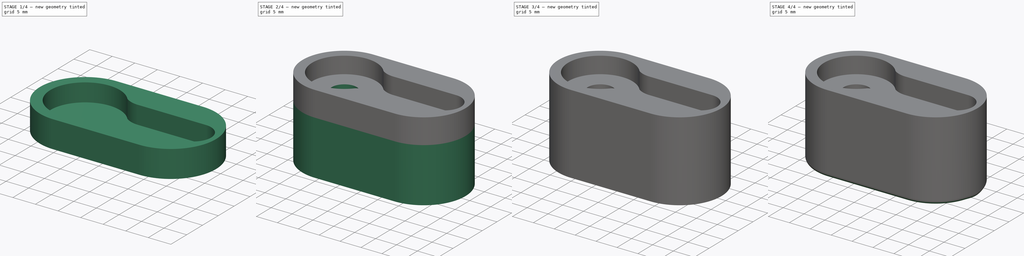
[diagram: build sequence overview — one tinted view per stage of 4, left to right]
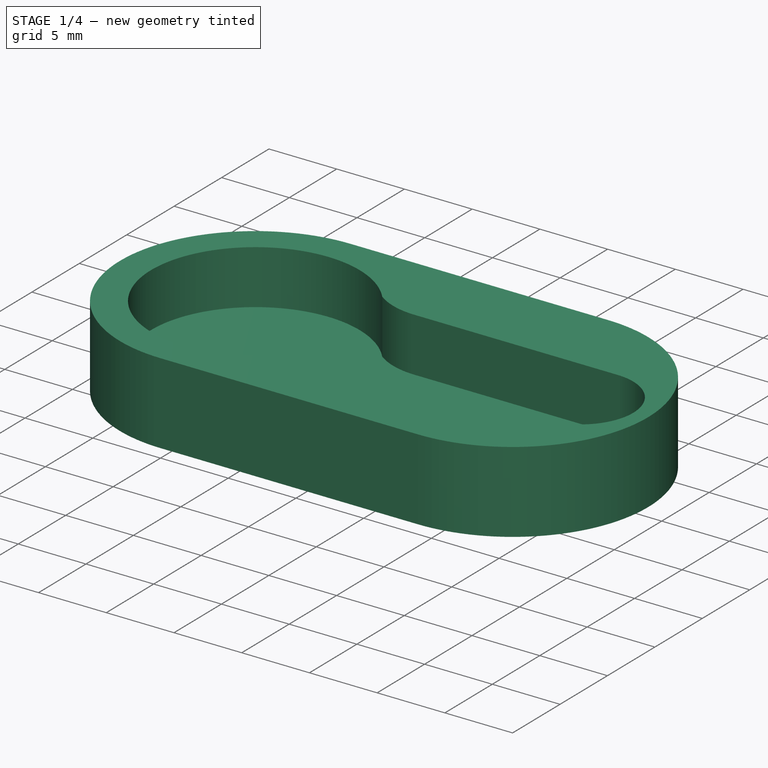
[diagram: stage 1 of 4 — iso view after this stage's code; geometry added in this stage tinted green]
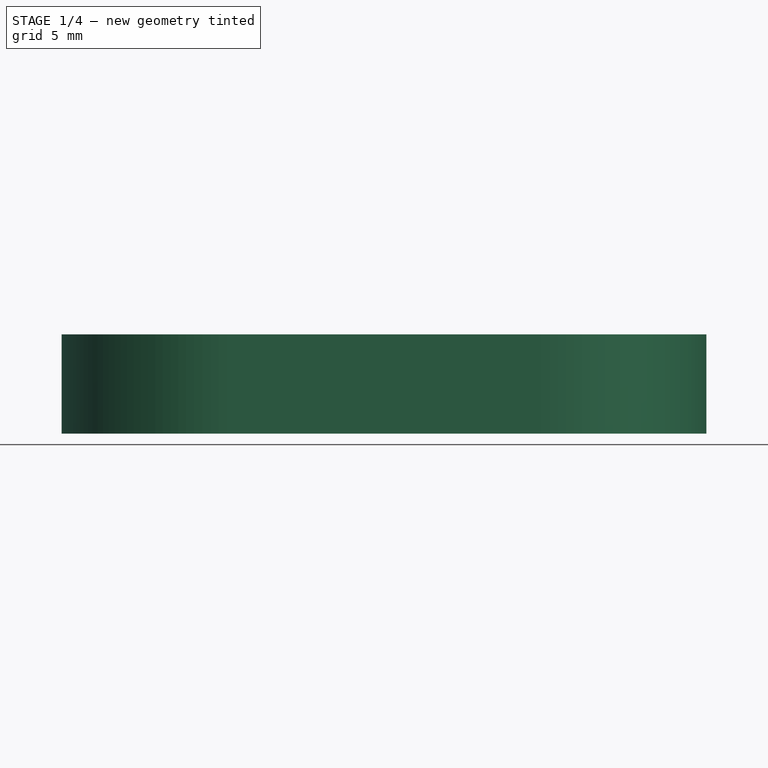
[diagram: stage 1 of 4 — front view after this stage's code; geometry added in this stage tinted green]
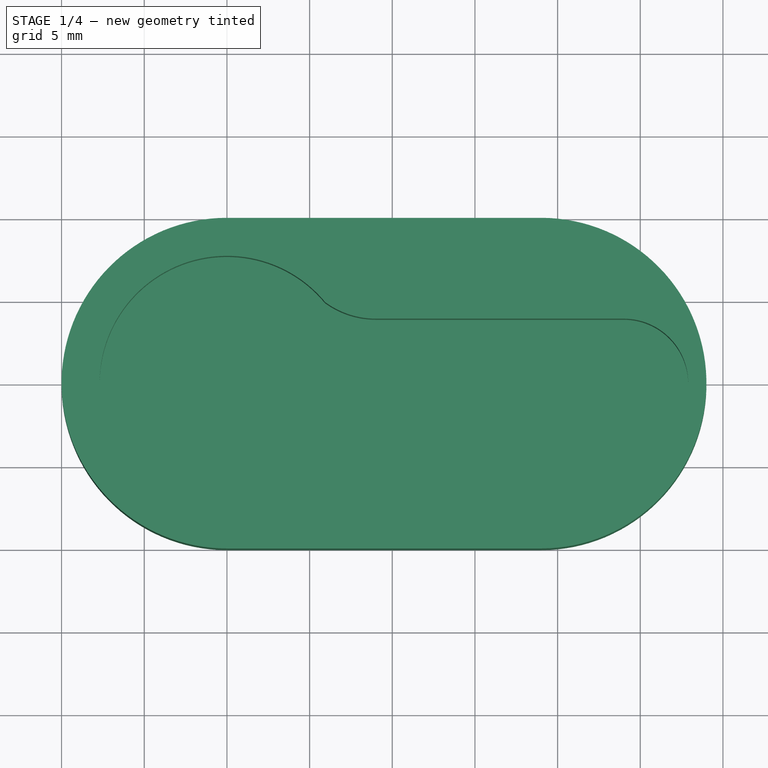
[diagram: stage 1 of 4 — top view after this stage's code; geometry added in this stage tinted green]
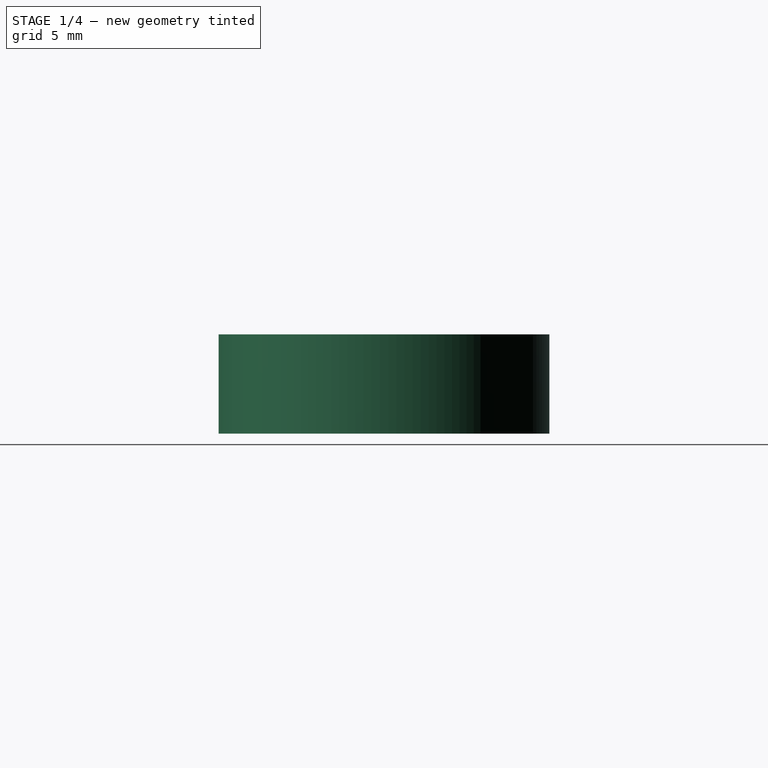
[diagram: stage 1 of 4 — right view after this stage's code; geometry added in this stage tinted green]
FCSTD DOCUMENT  (FreeCAD 0.19R24276 (Git))
Label: Rocker_support
License: All rights reserved
LicenseURL: http://en.wikipedia.org/wiki/All_rights_reserved
objects: Sketcher::SketchObject×4, PartDesign::Chamfer×4, PartDesign::Pad×3, PartDesign::Pocket×1, PartDesign::Fillet×1, PartDesign::Body×1
note: 23 computed .brp shape members not serialized (recipe doc carries the construction recipe); baked Part::Feature solids carry a one-line shape summary decoded from their .brp

FEATURE [Sketcher::SketchObject] Sketch
  FullyConstrained = false
  MapMode = 5
  Support = -> [XY_Plane]
  sketch-geometry (23):
    g0: LineSegment StartX=9 StartY=3.9 StartZ=0 EndX=9 EndY=-3.9 EndZ=0
    g1: LineSegment StartX=0 StartY=0 StartZ=0 EndX=10.25 EndY=0 EndZ=0
    g2: LineSegment StartX=9 StartY=3.9 StartZ=0 EndX=24 EndY=3.9 EndZ=0
    g3: LineSegment StartX=9 StartY=-3.9 StartZ=0 EndX=24 EndY=-3.9 EndZ=0
    g4: LineSegment StartX=24 StartY=0 StartZ=0 EndX=24 EndY=-3.75 EndZ=0
    g5: LineSegment StartX=24 StartY=0 StartZ=0 EndX=24 EndY=3.9 EndZ=0
    g6: ArcOfCircle CenterX=24 CenterY=0 CenterZ=0 NormalX=0 NormalY=0 NormalZ=1 AngleXU=0 Radius=3.9 StartAngle=4.71239 EndAngle=7.85398
    g7: LineSegment StartX=9 StartY=3.9 StartZ=0 EndX=9 EndY=9.08 EndZ=0
    g8: LineSegment StartX=9 StartY=-3.9 StartZ=0 EndX=9 EndY=-9.08 EndZ=0
    g9: ArcOfCircle CenterX=9 CenterY=-9.08 CenterZ=0 NormalX=0 NormalY=0 NormalZ=1 AngleXU=0 Radius=5.18 StartAngle=1.5708 EndAngle=2.20316
    g10: LineSegment StartX=9 StartY=-9.08 StartZ=0 EndX=5.93834 EndY=-4.90165 EndZ=0
    g11: ArcOfCircle CenterX=0 CenterY=0 CenterZ=0 NormalX=0 NormalY=0 NormalZ=1 AngleXU=0 Radius=7.7 StartAngle=0.690053 EndAngle=5.59313
    g12: LineSegment StartX=9 StartY=9.08 StartZ=0 EndX=5.93834 EndY=4.90165 EndZ=0
    g13: ArcOfCircle CenterX=9 CenterY=9.08 CenterZ=0 NormalX=0 NormalY=0 NormalZ=1 AngleXU=0 Radius=5.18 StartAngle=4.08002 EndAngle=4.71239
    g14: LineSegment StartX=24 StartY=3.9 StartZ=0 EndX=24 EndY=-3.9 EndZ=0
    g15: Circle CenterX=0 CenterY=0 CenterZ=0 NormalX=0 NormalY=0 NormalZ=1 AngleXU=0 Radius=3
    g16: Circle CenterX=24 CenterY=0 CenterZ=0 NormalX=0 NormalY=0 NormalZ=1 AngleXU=0 Radius=1.25
    g17: Circle CenterX=20 CenterY=0 CenterZ=0 NormalX=0 NormalY=0 NormalZ=1 AngleXU=0 Radius=1.25
    g18: LineSegment StartX=0 StartY=0 StartZ=0 EndX=0 EndY=0 EndZ=0
    g19: ArcOfCircle CenterX=0 CenterY=0 CenterZ=0 NormalX=0 NormalY=0 NormalZ=1 AngleXU=0 Radius=10 StartAngle=1.5708 EndAngle=4.71239
    g20: ArcOfCircle CenterX=19 CenterY=-9e-16 CenterZ=0 NormalX=0 NormalY=0 NormalZ=1 AngleXU=0 Radius=10 StartAngle=4.71239 EndAngle=7.85398
    g21: LineSegment StartX=-1.8e-15 StartY=-10 StartZ=0 EndX=19 EndY=-10 EndZ=0
    g22: LineSegment StartX=-1.6e-15 StartY=10 StartZ=0 EndX=19 EndY=10 EndZ=0
  constraints (62):
    c: Vertical(g0)
    c: PointOnObject(g1,g-1)
    c: Vertical(g4)
    c: PointOnObject(g5,g2)
    c: Vertical(g5)
    c: Coincident(g6,g4)
    c: Coincident(g6,g3)
    c: Coincident(g6,g2)
    c: Coincident(g7,g0)
    c: Vertical(g7)
    c: DistanceY(g7,g7) = 5.18
    c: Coincident(g8,g0)
    c: DistanceY(g8,g8) = 5.18
    c: Coincident(g9,g8)
    c: Coincident(g10,g8)
    c: PointOnObject(g10,g9)
    c: Coincident(g11,g-1)
    c: PointOnObject(g10,g11)
    c: Coincident(g0,g2)
    c: Coincident(g12,g7)
    c: PointOnObject(g12,g11)
    c: Coincident(g13,g7)
    c: PointOnObject(g12,g13)
    c: Coincident(g13,g7)
    c: Coincident(g9,g0)
    c: Coincident(g11,g9)
    c: Coincident(g11,g13)
    c: Coincident(g3,g9)
    c: DistanceX(g11,g9) = 9
    c: Vertical(g9,g13)
    c: Horizontal(g2)
    c: Horizontal(g3)
    c: DistanceY(g0,g0) = 7.8
    c: Coincident(g12,g11)
    c: Coincident(g10,g9)
    c: Coincident(g14,g2)
    c: Coincident(g14,g3)
    c: Vertical(g14)
    c: Coincident(g15,g11)
    c: Diameter(g15) = 6
    c: Coincident(g16,g6)
    c: Diameter(g16) = 2.5
    c: PointOnObject(g17,g-1)
    c: Equal(g17,g16)
    c: DistanceX(g17,g6) = 4
    c: Coincident(g6,g5)
    c: Vertical(g6,g3)
    c: Coincident(g18,g11)
    c: PointOnObject(g18,g-1)
    c: DistanceX(g18,g18) = 0
    c: Tangent(g19,g22) = 1.5708
    c: Tangent(g19,g21) = -1.5708
    c: Tangent(g21,g20) = -1.5708
    c: Tangent(g22,g20) = 1.5708
    c: Horizontal(g21)
    c: Equal(g19,g20)
    c: Coincident(g19,g11)
    c: Diameter(g20) = 20
    c: DistanceX(g11,g20) = 19
    c: Diameter(g11) = 15.4
    c: Horizontal(g6,g17)
    c: DistanceX(g11,g6) = 24
FEATURE [PartDesign::Pad] Pad
  Direction = (1,1,1)
  Length = 4
  Length2 = 100
  Profile = -> Sketch
  Type = 0
FEATURE [Sketcher::SketchObject] Sketch001
  FullyConstrained = false
  MapMode = 5
  sketch-geometry (23):
    g0: LineSegment StartX=9 StartY=3.9 StartZ=0 EndX=9 EndY=-3.9 EndZ=0
    g1: LineSegment StartX=0 StartY=0 StartZ=0 EndX=10.25 EndY=0 EndZ=0
    g2: LineSegment StartX=9 StartY=3.9 StartZ=0 EndX=24 EndY=3.9 EndZ=0
    g3: LineSegment StartX=9 StartY=-3.9 StartZ=0 EndX=24 EndY=-3.9 EndZ=0
    g4: LineSegment StartX=24 StartY=0 StartZ=0 EndX=24 EndY=-3.75 EndZ=0
    g5: LineSegment StartX=24 StartY=0 StartZ=0 EndX=24 EndY=3.9 EndZ=0
    g6: ArcOfCircle CenterX=24 CenterY=0 CenterZ=0 NormalX=0 NormalY=0 NormalZ=1 AngleXU=0 Radius=3.9 StartAngle=4.71239 EndAngle=7.85398
    g7: LineSegment StartX=9 StartY=3.9 StartZ=0 EndX=9 EndY=9.08 EndZ=0
    g8: LineSegment StartX=9 StartY=-3.9 StartZ=0 EndX=9 EndY=-9.08 EndZ=0
    g9: ArcOfCircle CenterX=9 CenterY=-9.08 CenterZ=0 NormalX=0 NormalY=0 NormalZ=1 AngleXU=0 Radius=5.18 StartAngle=1.5708 EndAngle=2.20316
    g10: LineSegment StartX=9 StartY=-9.08 StartZ=0 EndX=5.93834 EndY=-4.90165 EndZ=0
    g11: ArcOfCircle CenterX=0 CenterY=0 CenterZ=0 NormalX=0 NormalY=0 NormalZ=1 AngleXU=0 Radius=7.7 StartAngle=0.690053 EndAngle=5.59313
    g12: LineSegment StartX=9 StartY=9.08 StartZ=0 EndX=5.93834 EndY=4.90165 EndZ=0
    g13: ArcOfCircle CenterX=9 CenterY=9.08 CenterZ=0 NormalX=0 NormalY=0 NormalZ=1 AngleXU=0 Radius=5.18 StartAngle=4.08002 EndAngle=4.71239
    g14: LineSegment StartX=24 StartY=3.9 StartZ=0 EndX=24 EndY=-3.9 EndZ=0
    g15: Circle CenterX=0 CenterY=0 CenterZ=0 NormalX=0 NormalY=0 NormalZ=1 AngleXU=0 Radius=3
    g16: Circle CenterX=24 CenterY=0 CenterZ=0 NormalX=0 NormalY=0 NormalZ=1 AngleXU=0 Radius=1.25
    g17: Circle CenterX=20 CenterY=0 CenterZ=0 NormalX=0 NormalY=0 NormalZ=1 AngleXU=0 Radius=1.25
    g18: LineSegment StartX=0 StartY=0 StartZ=0 EndX=0 EndY=0 EndZ=0
    g19: ArcOfCircle CenterX=0 CenterY=0 CenterZ=0 NormalX=0 NormalY=0 NormalZ=1 AngleXU=0 Radius=10 StartAngle=1.5708 EndAngle=4.71239
    g20: ArcOfCircle CenterX=19 CenterY=-1e-16 CenterZ=0 NormalX=0 NormalY=0 NormalZ=1 AngleXU=0 Radius=10 StartAngle=4.71239 EndAngle=7.85398
    g21: LineSegment StartX=-1.8e-15 StartY=-10 StartZ=0 EndX=19 EndY=-10 EndZ=0
    g22: LineSegment StartX=-1.6e-15 StartY=10 StartZ=0 EndX=19 EndY=10 EndZ=0
  constraints (62):
    c: Vertical(g0)
    c: PointOnObject(g1,g-1)
    c: Vertical(g4)
    c: PointOnObject(g5,g2)
    c: Vertical(g5)
    c: Coincident(g6,g4)
    c: Coincident(g6,g3)
    c: Coincident(g6,g2)
    c: Coincident(g7,g0)
    c: Vertical(g7)
    c: DistanceY(g7,g7) = 5.18
    c: Coincident(g8,g0)
    c: DistanceY(g8,g8) = 5.18
    c: Coincident(g9,g8)
    c: Coincident(g10,g8)
    c: PointOnObject(g10,g9)
    c: Coincident(g11,g-1)
    c: PointOnObject(g10,g11)
    c: Coincident(g0,g2)
    c: Coincident(g12,g7)
    c: PointOnObject(g12,g11)
    c: Coincident(g13,g7)
    c: PointOnObject(g12,g13)
    c: Coincident(g13,g7)
    c: Coincident(g9,g0)
    c: Coincident(g11,g9)
    c: Coincident(g11,g13)
    c: Coincident(g3,g9)
    c: DistanceX(g11,g9) = 9
    c: Vertical(g9,g13)
    c: Horizontal(g2)
    c: Horizontal(g3)
    c: DistanceY(g0,g0) = 7.8
    c: Coincident(g12,g11)
    c: Coincident(g10,g9)
    c: Coincident(g14,g2)
    c: Coincident(g14,g3)
    c: Vertical(g14)
    c: Coincident(g15,g11)
    c: Diameter(g15) = 6
    c: Coincident(g16,g6)
    c: Diameter(g16) = 2.5
    c: PointOnObject(g17,g-1)
    c: Equal(g17,g16)
    c: DistanceX(g17,g6) = 4
    c: Coincident(g6,g5)
    c: Vertical(g6,g3)
    c: Coincident(g18,g11)
    c: PointOnObject(g18,g-1)
    c: DistanceX(g18,g18) = 0
    c: Tangent(g19,g22) = 1.5708
    c: Tangent(g19,g21) = -1.5708
    c: Tangent(g21,g20) = -1.5708
    c: Tangent(g22,g20) = 1.5708
    c: Horizontal(g21)
    c: Equal(g19,g20)
    c: Coincident(g19,g11)
    c: Diameter(g20) = 20
    c: DistanceX(g11,g20) = 19
    c: Diameter(g11) = 15.4
    c: Horizontal(g4,g17)
    c: DistanceX(g19,g4) = 24
FEATURE [PartDesign::Pad] Pad001
  BaseFeature = -> Pad
  Direction = (1,1,1)
  Length = 2
  Length2 = 100
  Profile = -> Sketch001
  Reversed = true
  Type = 0
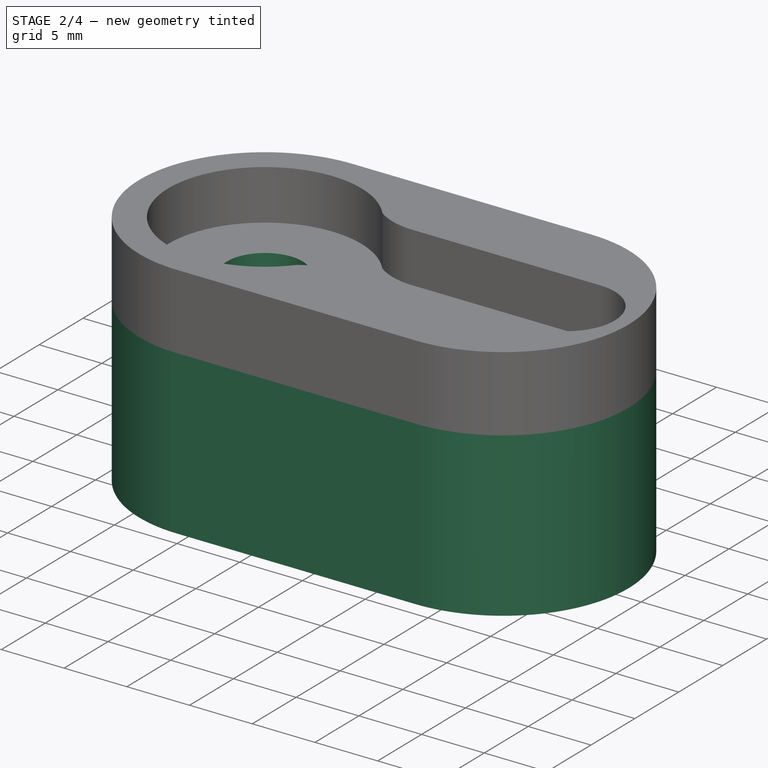
[diagram: stage 2 of 4 — iso view after this stage's code; geometry added in this stage tinted green]
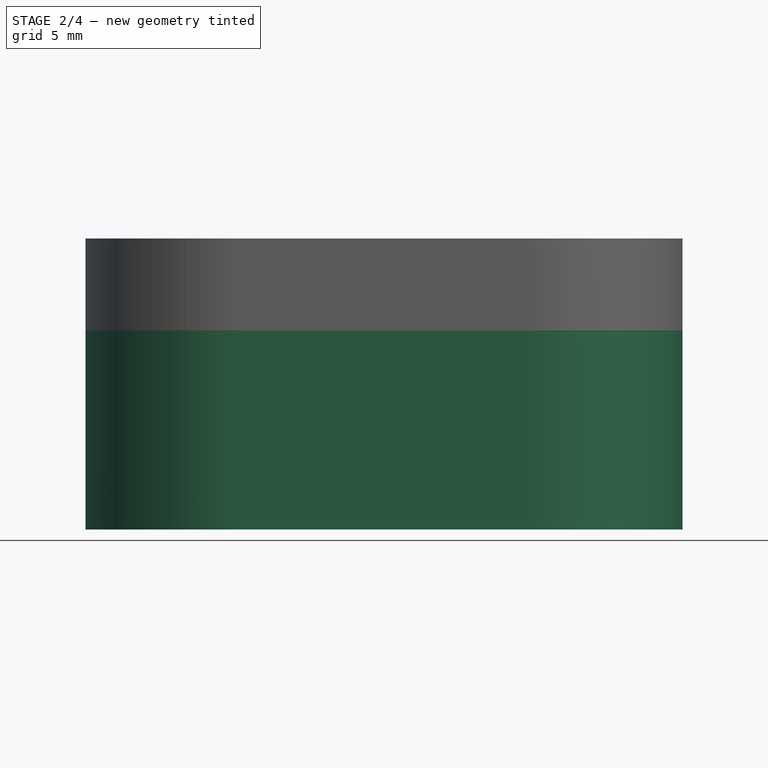
[diagram: stage 2 of 4 — front view after this stage's code; geometry added in this stage tinted green]
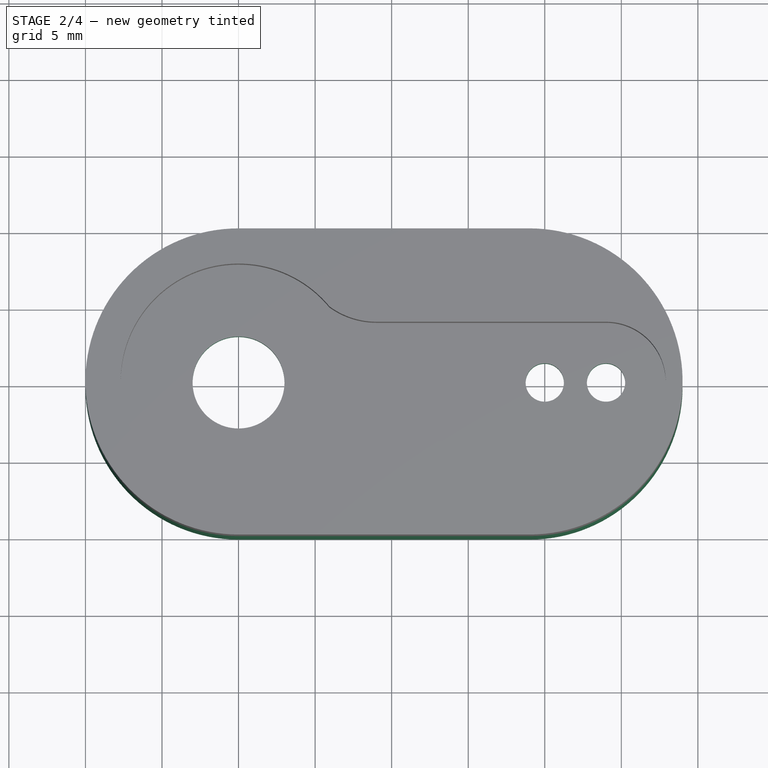
[diagram: stage 2 of 4 — top view after this stage's code; geometry added in this stage tinted green]
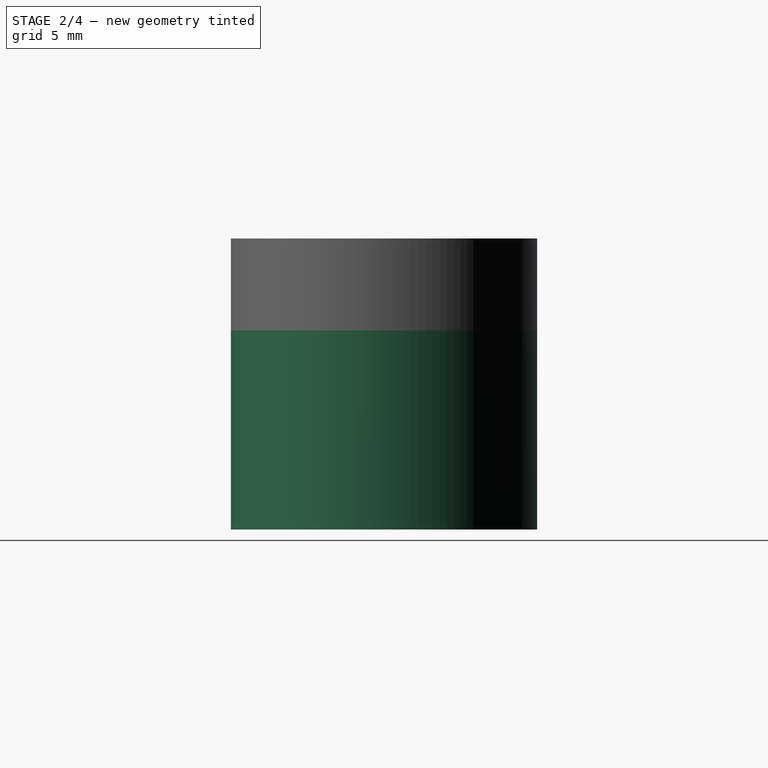
[diagram: stage 2 of 4 — right view after this stage's code; geometry added in this stage tinted green]
FEATURE [Sketcher::SketchObject] Sketch002
  FullyConstrained = false
  MapMode = 5
  sketch-geometry (23):
    g0: LineSegment StartX=9 StartY=3.9 StartZ=0 EndX=9 EndY=-3.9 EndZ=0
    g1: LineSegment StartX=0 StartY=0 StartZ=0 EndX=10.25 EndY=0 EndZ=0
    g2: LineSegment StartX=9 StartY=3.9 StartZ=0 EndX=24 EndY=3.9 EndZ=0
    g3: LineSegment StartX=9 StartY=-3.9 StartZ=0 EndX=24 EndY=-3.9 EndZ=0
    g4: LineSegment StartX=24 StartY=0 StartZ=0 EndX=24 EndY=-3.75 EndZ=0
    g5: LineSegment StartX=24 StartY=0 StartZ=0 EndX=24 EndY=3.9 EndZ=0
    g6: ArcOfCircle CenterX=24 CenterY=0 CenterZ=0 NormalX=0 NormalY=0 NormalZ=1 AngleXU=0 Radius=3.9 StartAngle=4.71239 EndAngle=7.85398
    g7: LineSegment StartX=9 StartY=3.9 StartZ=0 EndX=9 EndY=9.08 EndZ=0
    g8: LineSegment StartX=9 StartY=-3.9 StartZ=0 EndX=9 EndY=-9.08 EndZ=0
    g9: ArcOfCircle CenterX=9 CenterY=-9.08 CenterZ=0 NormalX=0 NormalY=0 NormalZ=1 AngleXU=0 Radius=5.18 StartAngle=1.5708 EndAngle=2.20316
    g10: LineSegment StartX=9 StartY=-9.08 StartZ=0 EndX=5.93834 EndY=-4.90165 EndZ=0
    g11: ArcOfCircle CenterX=0 CenterY=0 CenterZ=0 NormalX=0 NormalY=0 NormalZ=1 AngleXU=0 Radius=7.7 StartAngle=0.690053 EndAngle=5.59313
    g12: LineSegment StartX=9 StartY=9.08 StartZ=0 EndX=5.93834 EndY=4.90165 EndZ=0
    g13: ArcOfCircle CenterX=9 CenterY=9.08 CenterZ=0 NormalX=0 NormalY=0 NormalZ=1 AngleXU=0 Radius=5.18 StartAngle=4.08002 EndAngle=4.71239
    g14: LineSegment StartX=24 StartY=3.9 StartZ=0 EndX=24 EndY=-3.9 EndZ=0
    g15: Circle CenterX=0 CenterY=0 CenterZ=0 NormalX=0 NormalY=0 NormalZ=1 AngleXU=0 Radius=3
    g16: Circle CenterX=24 CenterY=0 CenterZ=0 NormalX=0 NormalY=0 NormalZ=1 AngleXU=0 Radius=1.25
    g17: Circle CenterX=20 CenterY=0 CenterZ=0 NormalX=0 NormalY=0 NormalZ=1 AngleXU=0 Radius=1.25
    g18: LineSegment StartX=0 StartY=0 StartZ=0 EndX=0 EndY=0 EndZ=0
    g19: ArcOfCircle CenterX=0 CenterY=0 CenterZ=0 NormalX=0 NormalY=0 NormalZ=1 AngleXU=0 Radius=10 StartAngle=1.5708 EndAngle=4.71239
    g20: ArcOfCircle CenterX=19 CenterY=1e-16 CenterZ=0 NormalX=0 NormalY=0 NormalZ=1 AngleXU=0 Radius=10 StartAngle=4.71239 EndAngle=7.85398
    g21: LineSegment StartX=0 StartY=-10 StartZ=0 EndX=19 EndY=-10 EndZ=0
    g22: LineSegment StartX=-1.6e-15 StartY=10 StartZ=0 EndX=19 EndY=10 EndZ=0
  constraints (62):
    c: Vertical(g0)
    c: PointOnObject(g1,g-1)
    c: Vertical(g4)
    c: PointOnObject(g5,g2)
    c: Vertical(g5)
    c: Coincident(g6,g4)
    c: Coincident(g6,g3)
    c: Coincident(g6,g2)
    c: Coincident(g7,g0)
    c: Vertical(g7)
    c: DistanceY(g7,g7) = 5.18
    c: Coincident(g8,g0)
    c: DistanceY(g8,g8) = 5.18
    c: Coincident(g9,g8)
    c: Coincident(g10,g8)
    c: PointOnObject(g10,g9)
    c: Coincident(g11,g-1)
    c: PointOnObject(g10,g11)
    c: Coincident(g0,g2)
    c: Coincident(g12,g7)
    c: PointOnObject(g12,g11)
    c: Coincident(g13,g7)
    c: PointOnObject(g12,g13)
    c: Coincident(g13,g7)
    c: Coincident(g9,g0)
    c: Coincident(g11,g9)
    c: Coincident(g11,g13)
    c: Coincident(g3,g9)
    c: DistanceX(g11,g9) = 9
    c: Vertical(g9,g13)
    c: Horizontal(g2)
    c: Horizontal(g3)
    c: DistanceY(g0,g0) = 7.8
    c: Coincident(g12,g11)
    c: Coincident(g10,g9)
    c: Coincident(g14,g2)
    c: Coincident(g14,g3)
    c: Vertical(g14)
    c: Coincident(g15,g11)
    c: Diameter(g15) = 6
    c: Coincident(g16,g6)
    c: Diameter(g16) = 2.5
    c: PointOnObject(g17,g-1)
    c: Equal(g17,g16)
    c: DistanceX(g17,g6) = 4
    c: Coincident(g6,g5)
    c: Vertical(g6,g3)
    c: Coincident(g18,g11)
    c: PointOnObject(g18,g-1)
    c: DistanceX(g18,g18) = 0
    c: Tangent(g19,g22) = 1.5708
    c: Tangent(g19,g21) = -1.5708
    c: Tangent(g21,g20) = -1.5708
    c: Tangent(g22,g20) = 1.5708
    c: Horizontal(g21)
    c: Equal(g19,g20)
    c: Coincident(g19,g11)
    c: Diameter(g20) = 20
    c: DistanceX(g11,g20) = 19
    c: Diameter(g11) = 15.4
    c: Horizontal(g16,g17)
    c: DistanceX(g15,g16) = 24
FEATURE [PartDesign::Pocket] Pocket
  BaseFeature = -> Pad001
  Length = 5
  Length2 = 100
  Profile = -> Sketch002
  Type = 1
FEATURE [Sketcher::SketchObject] Sketch003
  FullyConstrained = false
  MapMode = 5
  Placement = pos=(0,0,-2) rot=(0,0,1;0rad)
  sketch-geometry (35):
    g0: LineSegment StartX=9 StartY=3.9 StartZ=0 EndX=9 EndY=-3.9 EndZ=0
    g1: LineSegment StartX=0 StartY=0 StartZ=0 EndX=10.25 EndY=0 EndZ=0
    g2: LineSegment StartX=9 StartY=3.9 StartZ=0 EndX=24 EndY=3.9 EndZ=0
    g3: LineSegment StartX=9 StartY=-3.9 StartZ=0 EndX=24 EndY=-3.9 EndZ=0
    g4: LineSegment StartX=24 StartY=0 StartZ=0 EndX=24 EndY=-3.75 EndZ=0
    g5: LineSegment StartX=24 StartY=0 StartZ=0 EndX=24 EndY=3.9 EndZ=0
    g6: ArcOfCircle CenterX=24 CenterY=0 CenterZ=0 NormalX=0 NormalY=0 NormalZ=1 AngleXU=0 Radius=3.9 StartAngle=4.71239 EndAngle=7.85398
    g7: LineSegment StartX=9 StartY=3.9 StartZ=0 EndX=9 EndY=9.08 EndZ=0
    g8: LineSegment StartX=9 StartY=-3.9 StartZ=0 EndX=9 EndY=-9.08 EndZ=0
    g9: ArcOfCircle CenterX=9 CenterY=-9.08 CenterZ=0 NormalX=0 NormalY=0 NormalZ=1 AngleXU=0 Radius=5.18 StartAngle=1.5708 EndAngle=2.20316
    g10: LineSegment StartX=9 StartY=-9.08 StartZ=0 EndX=5.93834 EndY=-4.90165 EndZ=0
    g11: ArcOfCircle CenterX=0 CenterY=0 CenterZ=0 NormalX=0 NormalY=0 NormalZ=1 AngleXU=0 Radius=7.7 StartAngle=0.690053 EndAngle=5.59313
    g12: LineSegment StartX=9 StartY=9.08 StartZ=0 EndX=5.93834 EndY=4.90165 EndZ=0
    g13: ArcOfCircle CenterX=9 CenterY=9.08 CenterZ=0 NormalX=0 NormalY=0 NormalZ=1 AngleXU=0 Radius=5.18 StartAngle=4.08002 EndAngle=4.71239
    g14: LineSegment StartX=24 StartY=3.9 StartZ=0 EndX=24 EndY=-3.9 EndZ=0
    g15: Circle CenterX=0 CenterY=0 CenterZ=0 NormalX=0 NormalY=0 NormalZ=1 AngleXU=0 Radius=3
    g16: Circle CenterX=24 CenterY=0 CenterZ=0 NormalX=0 NormalY=0 NormalZ=1 AngleXU=0 Radius=1.25
    g17: Circle CenterX=20 CenterY=0 CenterZ=0 NormalX=0 NormalY=0 NormalZ=1 AngleXU=0 Radius=1.25
    g18: LineSegment StartX=0 StartY=0 StartZ=0 EndX=0 EndY=0 EndZ=0
    g19: ArcOfCircle CenterX=0 CenterY=0 CenterZ=0 NormalX=0 NormalY=0 NormalZ=1 AngleXU=0 Radius=10 StartAngle=1.5708 EndAngle=4.71239
    g20: ArcOfCircle CenterX=19 CenterY=-6e-16 CenterZ=0 NormalX=0 NormalY=0 NormalZ=1 AngleXU=0 Radius=10 StartAngle=4.71239 EndAngle=7.85398
    g21: LineSegment StartX=-1.8e-15 StartY=-10 StartZ=0 EndX=19 EndY=-10 EndZ=0
    g22: LineSegment StartX=-1.6e-15 StartY=10 StartZ=0 EndX=19 EndY=10 EndZ=0
    g23: LineSegment StartX=23 StartY=1.5 StartZ=0 EndX=23 EndY=-1.5 EndZ=0
    g24: LineSegment StartX=-7 StartY=-1.42701 StartZ=0 EndX=-7 EndY=1.42701 EndZ=0
    g25: LineSegment StartX=0 StartY=0 StartZ=0 EndX=-7 EndY=0 EndZ=0
    g26: ArcOfCircle CenterX=20 CenterY=0 CenterZ=0 NormalX=0 NormalY=0 NormalZ=1 AngleXU=0 Radius=4.00001 StartAngle=3.52487 EndAngle=5.23599
    g27: ArcOfCircle CenterX=20 CenterY=0 CenterZ=0 NormalX=0 NormalY=0 NormalZ=1 AngleXU=0 Radius=4.00001 StartAngle=1.0472 EndAngle=2.75607
    g28: ArcOfCircle CenterX=24 CenterY=1.34123e-08 CenterZ=0 NormalX=0 NormalY=0 NormalZ=1 AngleXU=0 Radius=4 StartAngle=4.18879 EndAngle=8.37758
    g29: LineSegment StartX=3.1603 StartY=1.50417 StartZ=0 EndX=16.2936 EndY=1.50417 EndZ=0
    g30: LineSegment StartX=-3.19588 StartY=-1.42701 StartZ=0 EndX=-7 EndY=-1.42701 EndZ=0
    g31: LineSegment StartX=3.16425 StartY=-1.49583 StartZ=0 EndX=16.2902 EndY=-1.49583 EndZ=0
    g32: LineSegment StartX=-7 StartY=1.42701 StartZ=0 EndX=-3.19588 EndY=1.42701 EndZ=0
    g33: ArcOfCircle CenterX=0 CenterY=0 CenterZ=0 NormalX=0 NormalY=0 NormalZ=1 AngleXU=0 Radius=3.5 StartAngle=0.444229 EndAngle=2.72164
    g34: ArcOfCircle CenterX=0 CenterY=0 CenterZ=0 NormalX=0 NormalY=0 NormalZ=1 AngleXU=0 Radius=3.5 StartAngle=3.56154 EndAngle=5.84159
  constraints (91):
    c: Vertical(g0)
    c: PointOnObject(g1,g-1)
    c: Vertical(g4)
    c: PointOnObject(g5,g2)
    c: Vertical(g5)
    c: Coincident(g6,g4)
    c: Coincident(g6,g3)
    c: Coincident(g6,g2)
    c: Coincident(g7,g0)
    c: Vertical(g7)
    c: DistanceY(g7,g7) = 5.18
    c: Coincident(g8,g0)
    c: DistanceY(g8,g8) = 5.18
    c: Coincident(g9,g8)
    c: Coincident(g10,g8)
    c: PointOnObject(g10,g9)
    c: Coincident(g11,g-1)
    c: PointOnObject(g10,g11)
    c: Coincident(g0,g2)
    c: Coincident(g12,g7)
    c: PointOnObject(g12,g11)
    c: Coincident(g13,g7)
    c: PointOnObject(g12,g13)
    c: Coincident(g13,g7)
    c: Coincident(g9,g0)
    c: Coincident(g11,g9)
    c: Coincident(g11,g13)
    c: Coincident(g3,g9)
    c: DistanceX(g11,g9) = 9
    c: Vertical(g9,g13)
    c: Horizontal(g2)
    c: Horizontal(g3)
    c: DistanceY(g0,g0) = 7.8
    c: Coincident(g12,g11)
    c: Coincident(g10,g9)
    c: Coincident(g14,g2)
    c: Coincident(g14,g3)
    c: Vertical(g14)
    c: Coincident(g15,g11)
    c: Diameter(g15) = 6
    c: Coincident(g16,g6)
    c: Diameter(g16) = 2.5
    c: PointOnObject(g17,g-1)
    c: Equal(g17,g16)
    c: DistanceX(g17,g6) = 4
    c: Coincident(g6,g5)
    c: Vertical(g6,g3)
    c: Coincident(g18,g11)
    c: PointOnObject(g18,g-1)
    c: DistanceX(g18,g18) = 0
    c: Tangent(g19,g22) = 1.5708
    c: Tangent(g19,g21) = -1.5708
    c: Tangent(g21,g20) = -1.5708
    c: Tangent(g22,g20) = 1.5708
    c: Horizontal(g21)
    c: Equal(g19,g20)
    c: Coincident(g19,g11)
    c: Diameter(g20) = 20
    c: DistanceX(g11,g20) = 19
    c: Diameter(g11) = 15.4
    c: Coincident(g30,g24)
    c: Vertical(g23)
    c: Vertical(g24)
    c: Coincident(g25,g15)
    c: PointOnObject(g25,g-1)
    c: Symmetric(g30,g24,g25)
    c: DistanceX(g30,g15) = 7
    c: DistanceX(g15,g23) = 23
    c: Horizontal(g17,g16)
    c: DistanceX(g15,g16) = 24
    c: Coincident(g26,g17)
    c: Coincident(g29,g27)
    c: Equal(g26,g27)
    c: Coincident(g27,g28)
    c: Coincident(g26,g27)
    c: Coincident(g26,g28)
    c: Coincident(g31,g26)
    c: Horizontal(g31)
    c: Coincident(g32,g24)
    c: Horizontal(g32)
    c: DistanceY(g26,g27) = 3
    c: Horizontal(g29)
    c: Horizontal(g30)
    c: Coincident(g33,g19)
    c: Diameter(g33) = 7
    c: Coincident(g34,g31)
    c: Coincident(g33,g29)
    c: Equal(g33,g34)
    c: Coincident(g33,g32)
    c: Coincident(g33,g34)
    c: Coincident(g30,g34)
FEATURE [PartDesign::Pad] Pad002
  BaseFeature = -> Pocket
  Direction = (1,1,1)
  Length = 13
  Length2 = 100
  Profile = -> Sketch003
  Reversed = true
  Type = 0
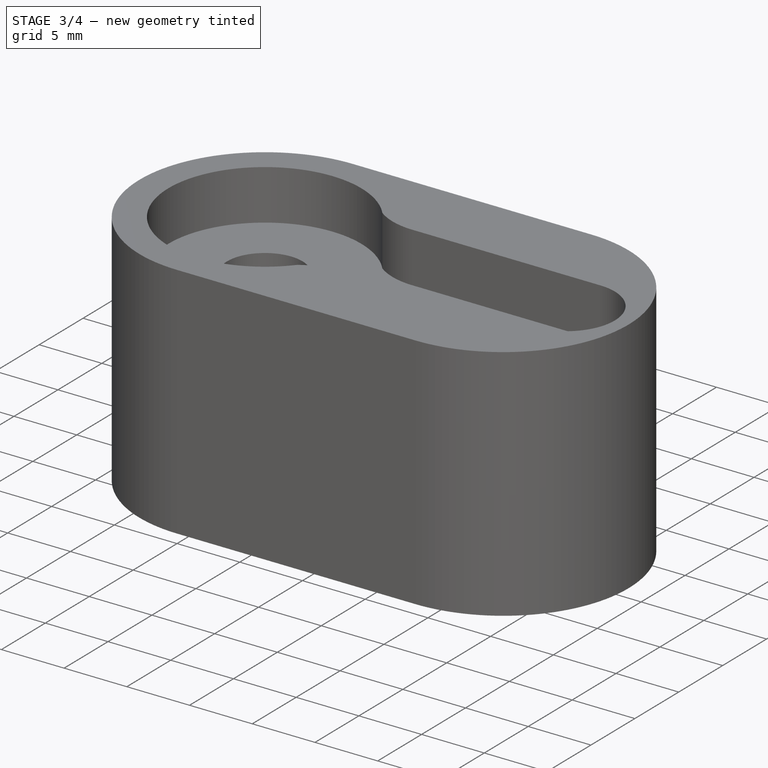
[diagram: stage 3 of 4 — iso view after this stage's code; geometry added in this stage tinted green]
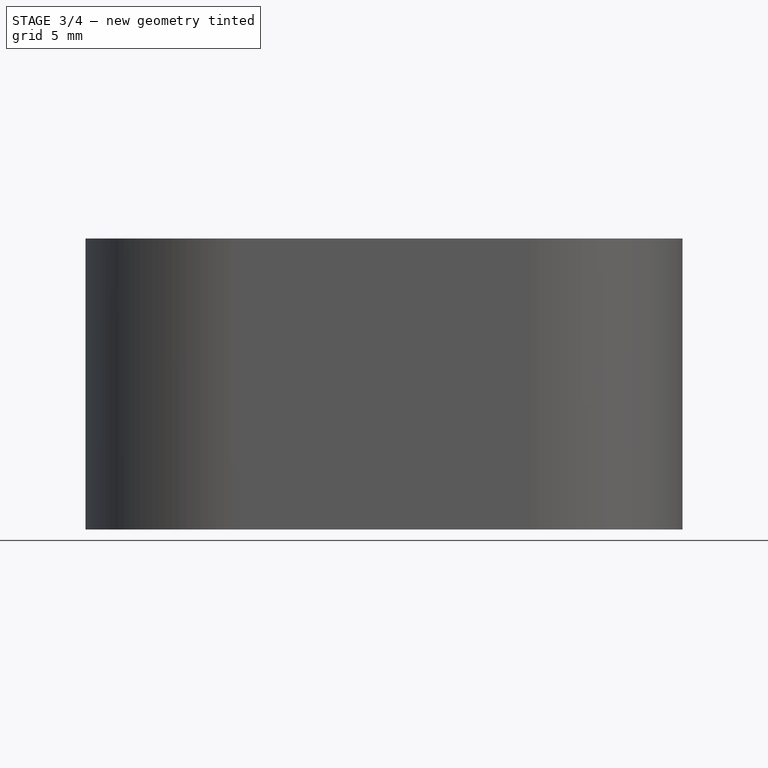
[diagram: stage 3 of 4 — front view after this stage's code; geometry added in this stage tinted green]
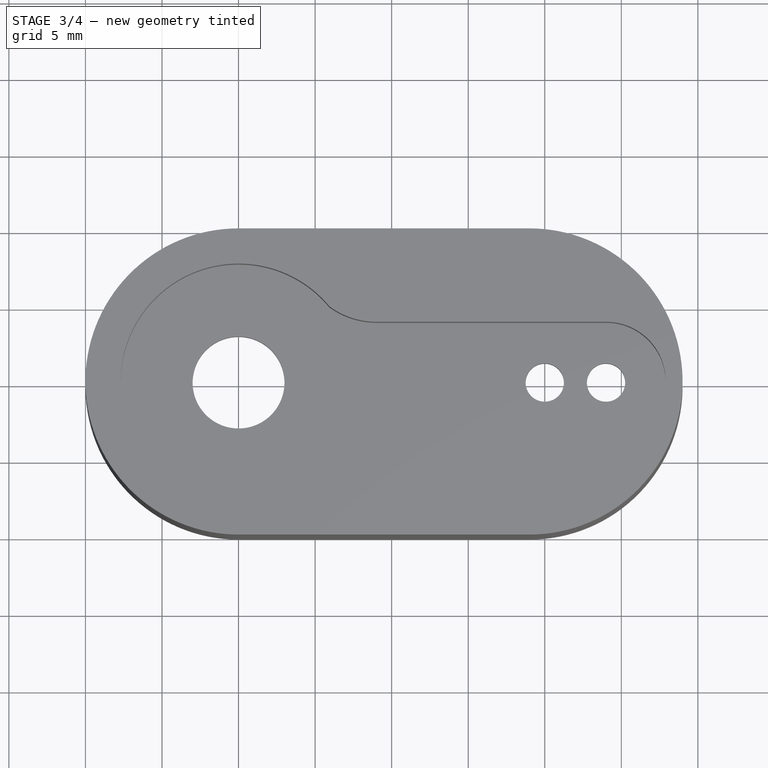
[diagram: stage 3 of 4 — top view after this stage's code; geometry added in this stage tinted green]
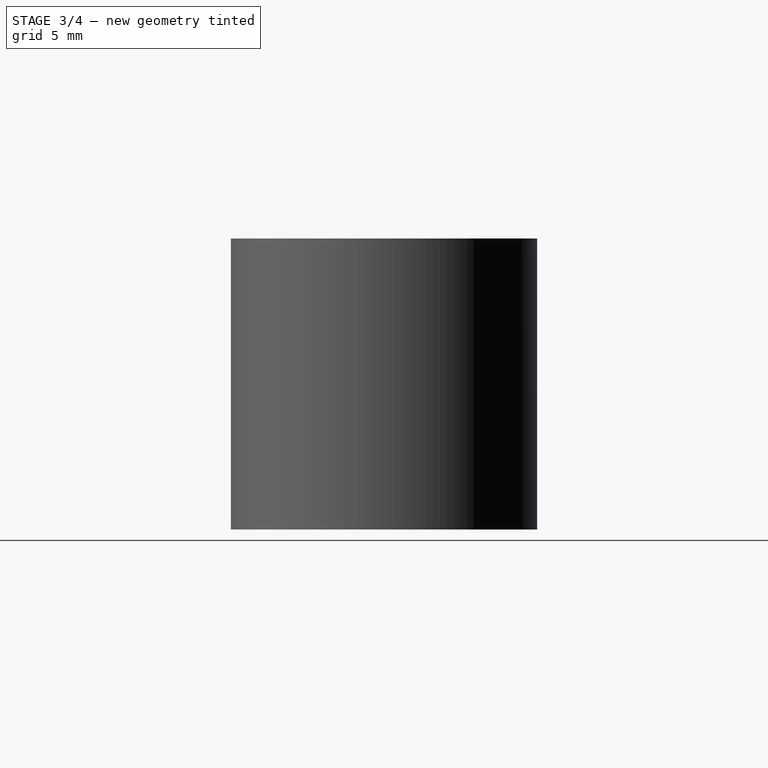
[diagram: stage 3 of 4 — right view after this stage's code; geometry added in this stage tinted green]
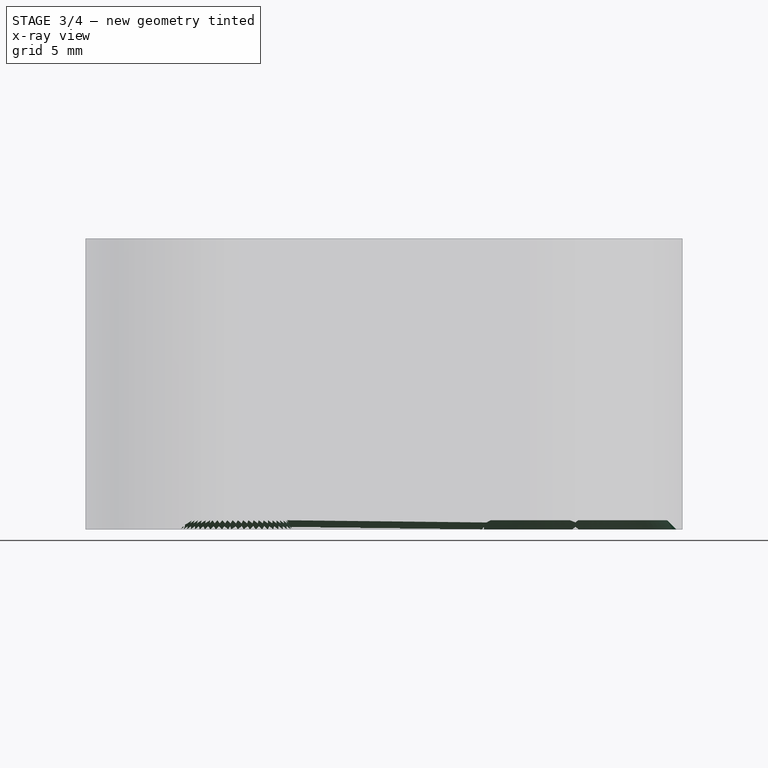
[diagram: stage 3 of 4 — x-ray composite at the front view; earlier geometry ghosted, this stage's added geometry solid]
FEATURE [PartDesign::Chamfer] Chamfer
  Angle = 45
  Base = -> Pad002 [Edge55,Edge51]
  BaseFeature = -> Pad002
  ChamferType = 0
  FlipDirection = false
  Size = 0.6
  Size2 = 1
  SupportTransform = false
FEATURE [PartDesign::Chamfer] Chamfer001
  Angle = 45
  Base = -> Chamfer [Edge8,Edge6,Edge4,Edge1,Edge9]
  BaseFeature = -> Chamfer
  ChamferType = 0
  FlipDirection = false
  Size = 0.6
  Size2 = 1
  SupportTransform = false
FEATURE [PartDesign::Chamfer] Chamfer002
  Angle = 45
  Base = -> Chamfer001 [Edge8]
  BaseFeature = -> Chamfer001
  ChamferType = 0
  FlipDirection = false
  Size = 0.6
  Size2 = 1
  SupportTransform = false
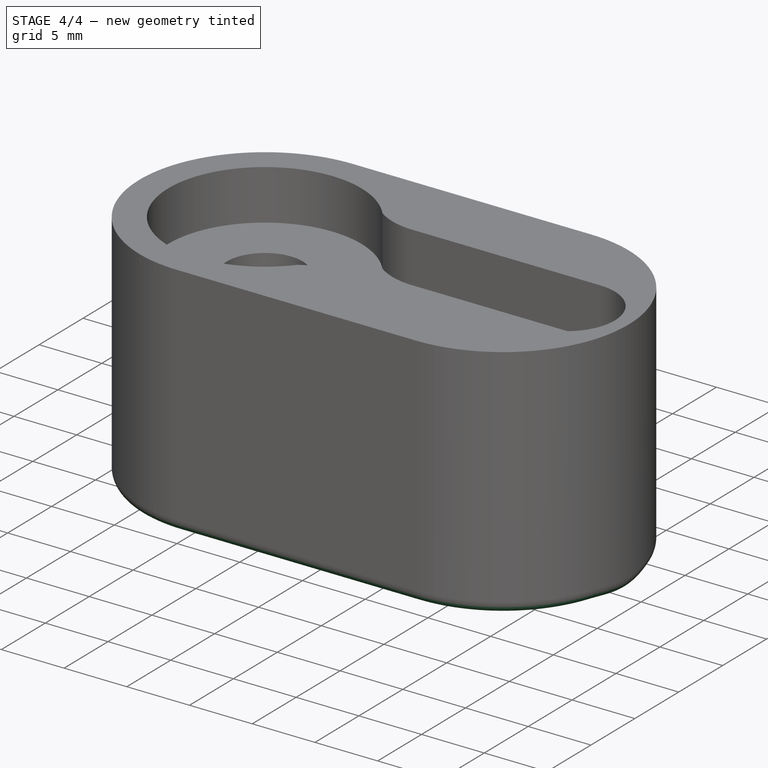
[diagram: stage 4 of 4 — iso view after this stage's code; geometry added in this stage tinted green]
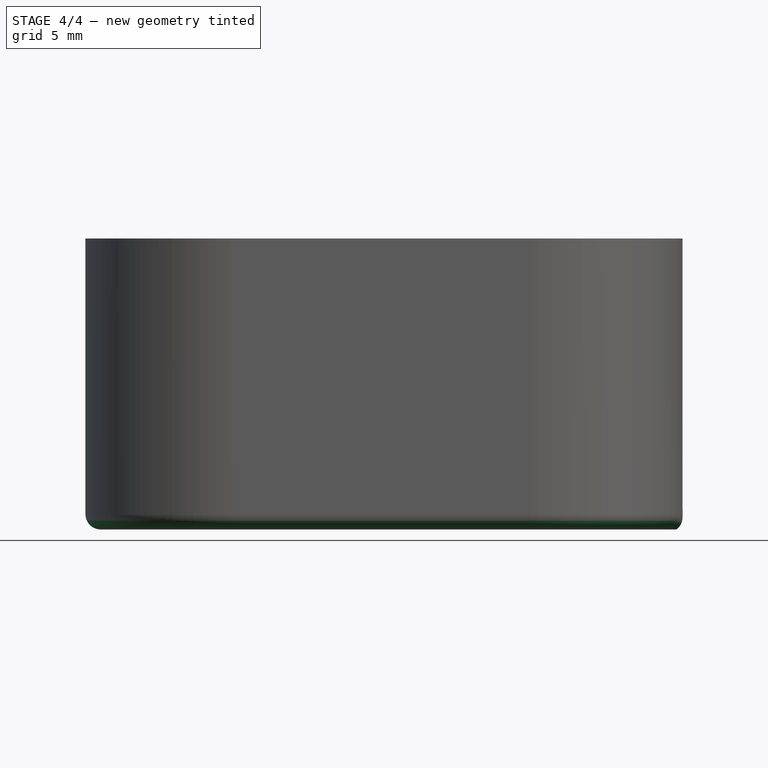
[diagram: stage 4 of 4 — front view after this stage's code; geometry added in this stage tinted green]
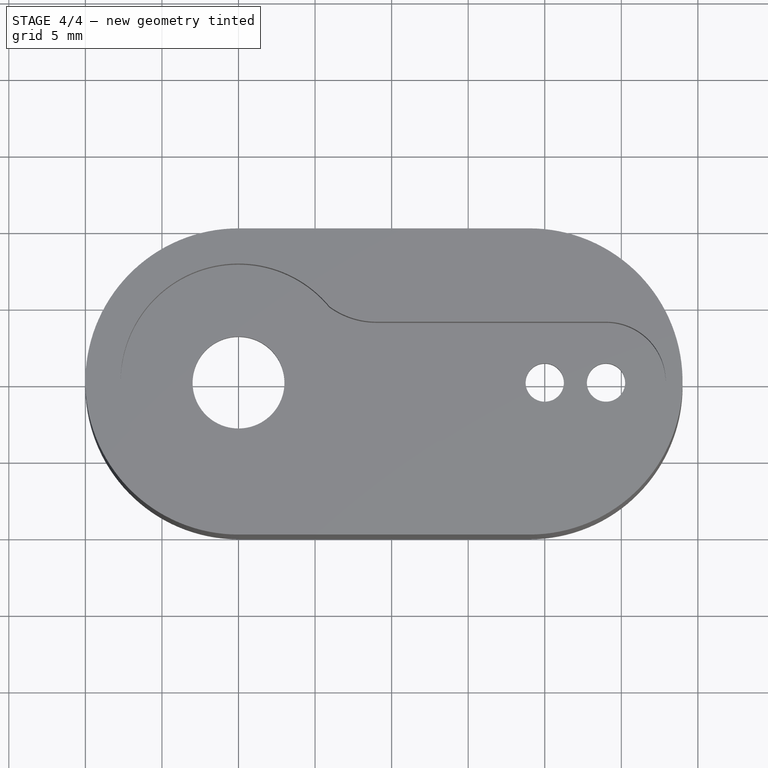
[diagram: stage 4 of 4 — top view after this stage's code; geometry added in this stage tinted green]
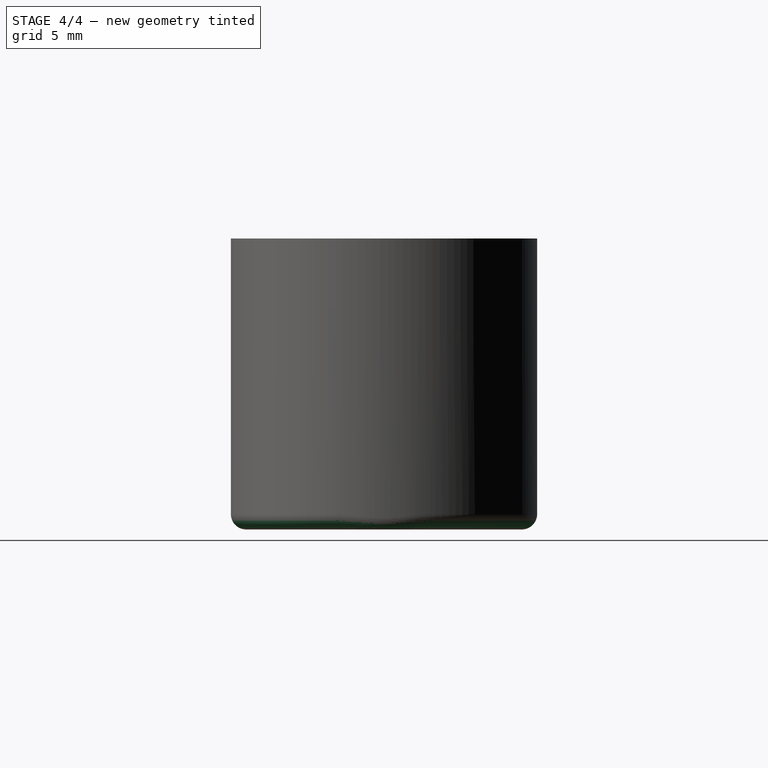
[diagram: stage 4 of 4 — right view after this stage's code; geometry added in this stage tinted green]
FEATURE [PartDesign::Chamfer] Chamfer003
  Angle = 45
  Base = -> Chamfer002 [Edge8,Edge6,Edge4]
  BaseFeature = -> Chamfer002
  ChamferType = 0
  FlipDirection = false
  Size = 0.6
  Size2 = 1
  SupportTransform = false
FEATURE [PartDesign::Fillet] Fillet
  Base = -> Chamfer003 [Edge16,Edge15,Edge14,Edge13]
  BaseFeature = -> Chamfer003
  Radius = 1
  SupportTransform = false
FEATURE [PartDesign::Body] Body
  Group = -> [Sketch,Pad,Sketch001,Pad001,Sketch002,Pocket,Sketch003,Pad002,Chamfer,Chamfer001,Chamfer002,Chamfer003,Fillet]
  Origin = -> Origin
  Tip = -> Fillet
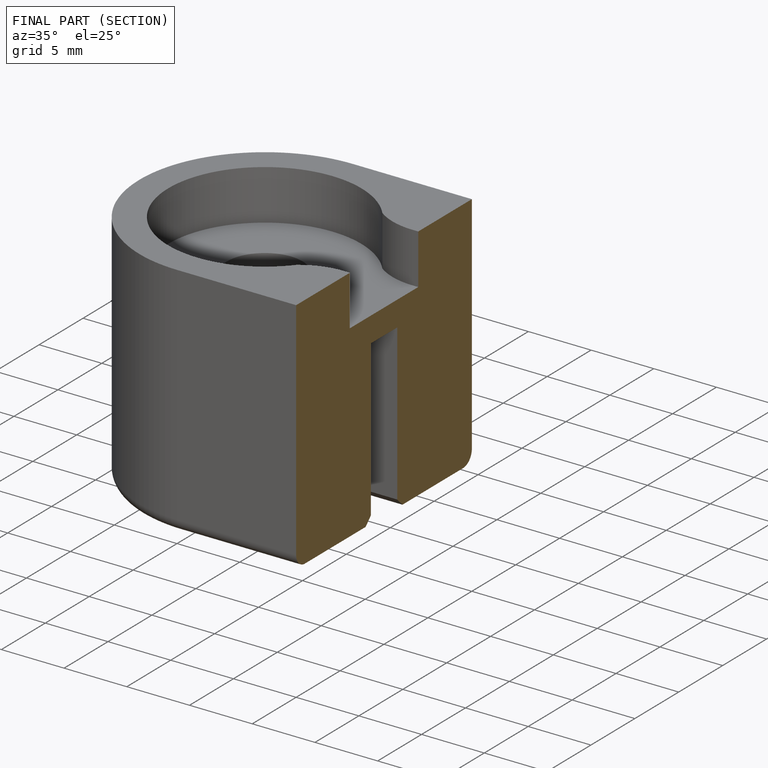
[diagram: finished part — half-section view (interior)]
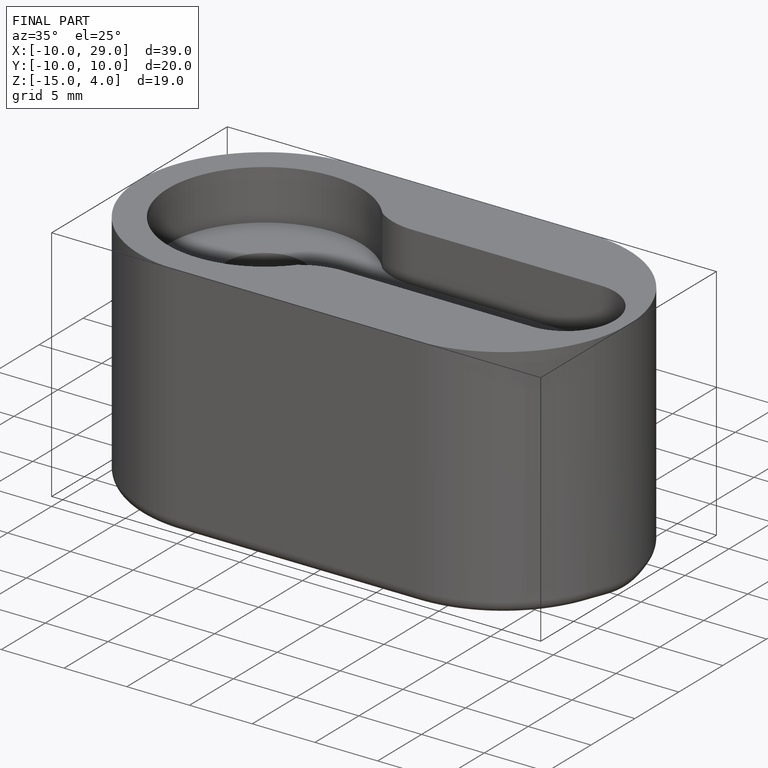
[diagram: finished part — iso view with bounding-box wireframe]
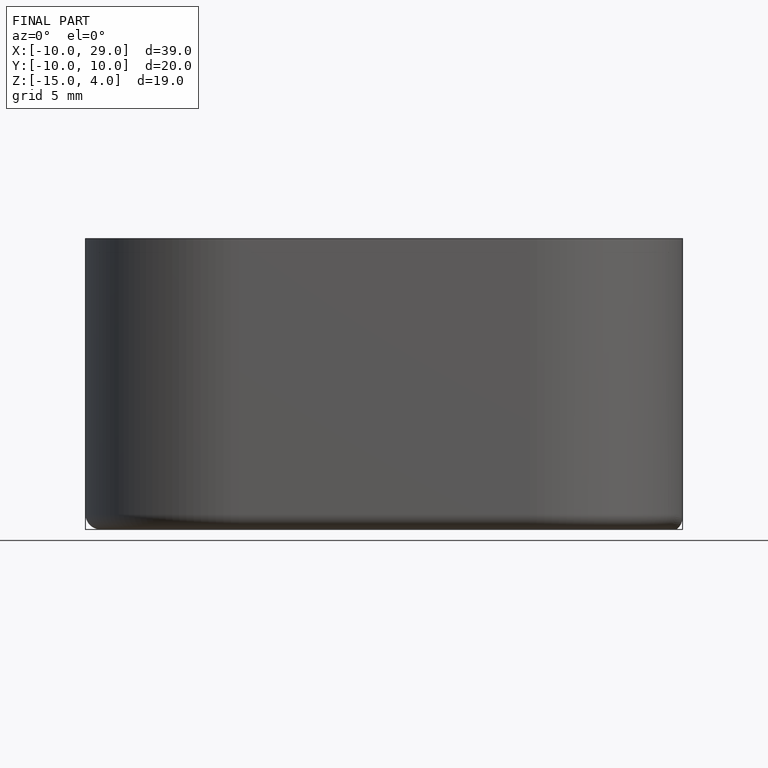
[diagram: finished part — front view with bounding-box wireframe]
